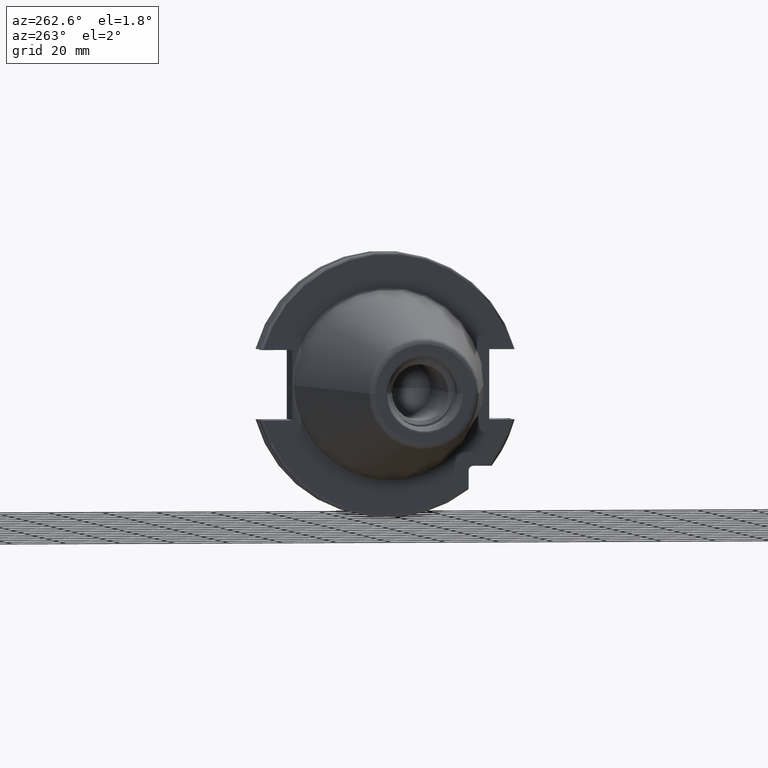
[diagram: clean part render]
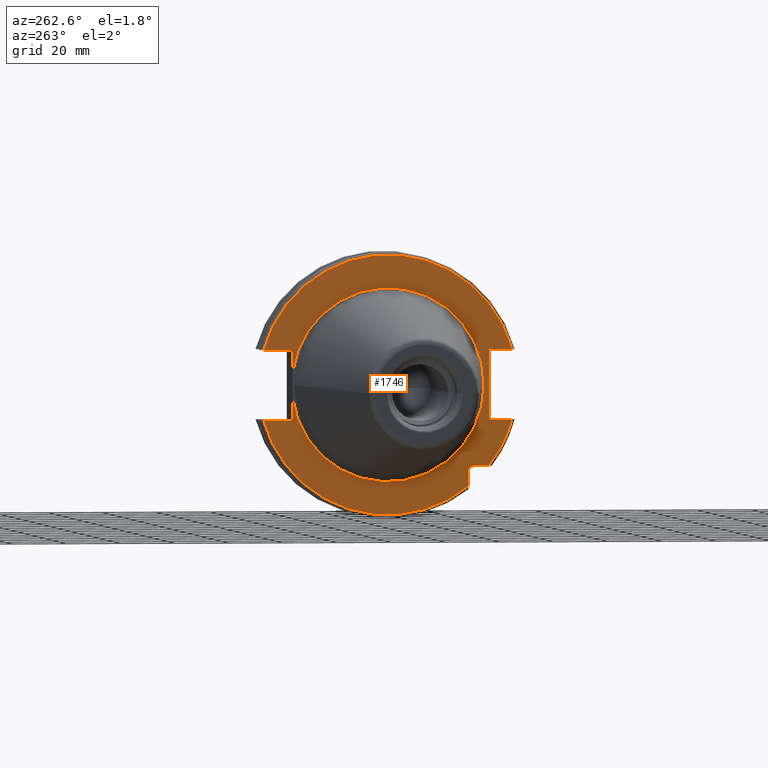
[diagram: same view with one face highlighted and labeled with its STEP entity id]
A machine part, auxiliary view. The second image highlights one B-rep face of the part: STEP entity #1746.
In plain terms, the highlighted planar face has unit normal (1, 0, 0).
Its self-contained STEP definition (entity closure, byte-faithful):
#117=CARTESIAN_POINT('',(3.2E0,0.E0,0.E0));
#118=DIRECTION('',(-1.E0,0.E0,0.E0));
#119=DIRECTION('',(0.E0,9.922698524245E-1,-1.240989120402E-1));
#120=AXIS2_PLACEMENT_3D('',#117,#118,#119);
#177=CARTESIAN_POINT('',(3.2E0,-3.16E1,-3.16E1));
#178=DIRECTION('',(1.E0,0.E0,0.E0));
#179=DIRECTION('',(0.E0,1.E0,0.E0));
#180=AXIS2_PLACEMENT_3D('',#177,#178,#179);
#182=DIRECTION('',(0.E0,-1.E0,0.E0));
#183=VECTOR('',#182,5.653810627237E0);
#184=CARTESIAN_POINT('',(3.2E0,-3.16E1,-2.985E1));
#185=LINE('',#184,#183);
#186=DIRECTION('',(0.E0,0.E0,1.E0));
#187=VECTOR('',#186,5.653810627237E0);
#188=CARTESIAN_POINT('',(3.2E0,-2.985E1,-3.725381062724E1));
#189=LINE('',#188,#187);
#190=CARTESIAN_POINT('',(3.2E0,0.E0,0.E0));
#191=DIRECTION('',(-1.E0,0.E0,0.E0));
#192=DIRECTION('',(0.E0,9.627964123359E-1,-2.702278083268E-1));
#193=AXIS2_PLACEMENT_3D('',#190,#191,#192);
#195=DIRECTION('',(0.E0,-1.E0,0.E0));
#196=VECTOR('',#195,1.066149373389E1);
#197=CARTESIAN_POINT('',(3.2E0,4.596149373389E1,-1.29E1));
#198=LINE('',#197,#196);
#199=DIRECTION('',(0.E0,0.E0,-1.E0));
#200=VECTOR('',#199,8.485181204172E0);
#201=CARTESIAN_POINT('',(3.2E0,3.53E1,-4.414818795828E0));
#202=LINE('',#201,#200);
#203=DIRECTION('',(0.E0,0.E0,-1.E0));
#204=VECTOR('',#203,8.485181204172E0);
#205=CARTESIAN_POINT('',(3.2E0,3.53E1,1.29E1));
#206=LINE('',#205,#204);
#207=DIRECTION('',(0.E0,-1.E0,0.E0));
#208=VECTOR('',#207,1.066149373389E1);
#209=CARTESIAN_POINT('',(3.2E0,4.596149373389E1,1.29E1));
#210=LINE('',#209,#208);
#211=CARTESIAN_POINT('',(3.2E0,0.E0,0.E0));
#212=DIRECTION('',(1.E0,0.E0,0.E0));
#213=DIRECTION('',(0.E0,9.627964123359E-1,2.702278083268E-1));
#214=AXIS2_PLACEMENT_3D('',#211,#212,#213);
#216=DIRECTION('',(0.E0,1.E0,0.E0));
#217=VECTOR('',#216,8.461493733886E0);
#218=CARTESIAN_POINT('',(3.2E0,-4.596149373389E1,1.29E1));
#219=LINE('',#218,#217);
#220=DIRECTION('',(0.E0,0.E0,1.E0));
#221=VECTOR('',#220,2.58E1);
#222=CARTESIAN_POINT('',(3.2E0,-3.75E1,-1.29E1));
#223=LINE('',#222,#221);
#224=DIRECTION('',(0.E0,1.E0,0.E0));
#225=VECTOR('',#224,8.461493733886E0);
#226=CARTESIAN_POINT('',(3.2E0,-4.596149373389E1,-1.29E1));
#227=LINE('',#226,#225);
#228=CARTESIAN_POINT('',(3.2E0,0.E0,0.E0));
#229=DIRECTION('',(-1.E0,0.E0,0.E0));
#230=DIRECTION('',(0.E0,-7.803888060170E-1,-6.252945797329E-1));
#231=AXIS2_PLACEMENT_3D('',#228,#229,#230);
#279=CARTESIAN_POINT('',(3.2E0,-3.725381062724E1,-2.985E1));
#891=CARTESIAN_POINT('',(3.2E0,0.E0,0.E0));
#892=DIRECTION('',(1.E0,0.E0,0.E0));
#893=DIRECTION('',(0.E0,9.922698524245E-1,1.240989120402E-1));
#894=AXIS2_PLACEMENT_3D('',#891,#892,#893);
#1218=CARTESIAN_POINT('',(3.2E0,-3.5575E1,0.E0));
#1220=VERTEX_POINT('',#1218);
#1352=CARTESIAN_POINT('',(3.2E0,4.596149373389E1,1.29E1));
#1353=CARTESIAN_POINT('',(3.2E0,3.53E1,1.29E1));
#1354=VERTEX_POINT('',#1352);
#1355=VERTEX_POINT('',#1353);
#1356=CARTESIAN_POINT('',(3.2E0,3.53E1,4.414818795828E0));
#1357=VERTEX_POINT('',#1356);
#1358=CARTESIAN_POINT('',(3.2E0,3.53E1,-4.414818795828E0));
#1359=CARTESIAN_POINT('',(3.2E0,3.53E1,-1.29E1));
#1360=VERTEX_POINT('',#1358);
#1361=VERTEX_POINT('',#1359);
#1362=CARTESIAN_POINT('',(3.2E0,4.596149373389E1,-1.29E1));
#1363=VERTEX_POINT('',#1362);
#1364=CARTESIAN_POINT('',(3.2E0,-4.596149373389E1,-1.29E1));
#1365=CARTESIAN_POINT('',(3.2E0,-3.75E1,-1.29E1));
#1366=VERTEX_POINT('',#1364);
#1367=VERTEX_POINT('',#1365);
#1368=CARTESIAN_POINT('',(3.2E0,-3.75E1,1.29E1));
#1369=VERTEX_POINT('',#1368);
#1370=CARTESIAN_POINT('',(3.2E0,-4.596149373389E1,1.29E1));
#1371=VERTEX_POINT('',#1370);
#1403=CARTESIAN_POINT('',(3.2E0,-2.985E1,-3.725381062724E1));
#1404=VERTEX_POINT('',#1403);
#1409=CARTESIAN_POINT('',(3.2E0,-2.985E1,-3.16E1));
#1410=CARTESIAN_POINT('',(3.2E0,-3.16E1,-2.985E1));
#1411=VERTEX_POINT('',#1409);
#1412=VERTEX_POINT('',#1410);
#1431=VERTEX_POINT('',#279);
#1714=CARTESIAN_POINT('',(3.2E0,0.E0,0.E0));
#1715=DIRECTION('',(1.E0,0.E0,0.E0));
#1716=DIRECTION('',(0.E0,-1.E0,0.E0));
#1717=AXIS2_PLACEMENT_3D('',#1714,#1715,#1716);
#1718=PLANE('',#1717);
#1720=ORIENTED_EDGE('',*,*,#1719,.F.);
#1721=ORIENTED_EDGE('',*,*,#1707,.F.);
#1722=ORIENTED_EDGE('',*,*,#1695,.F.);
#1724=ORIENTED_EDGE('',*,*,#1723,.F.);
#1726=ORIENTED_EDGE('',*,*,#1725,.T.);
#1727=ORIENTED_EDGE('',*,*,#1621,.F.);
#1728=ORIENTED_EDGE('',*,*,#1602,.T.);
#1730=ORIENTED_EDGE('',*,*,#1729,.F.);
#1731=ORIENTED_EDGE('',*,*,#1616,.F.);
#1733=ORIENTED_EDGE('',*,*,#1732,.F.);
#1735=ORIENTED_EDGE('',*,*,#1734,.T.);
#1737=ORIENTED_EDGE('',*,*,#1736,.T.);
#1739=ORIENTED_EDGE('',*,*,#1738,.F.);
#1741=ORIENTED_EDGE('',*,*,#1740,.F.);
#1743=ORIENTED_EDGE('',*,*,#1742,.F.);
#1744=EDGE_LOOP('',(#1720,#1721,#1722,#1724,#1726,#1727,#1728,#1730,#1731,#1733,
#1735,#1737,#1739,#1741,#1743));
#1745=FACE_OUTER_BOUND('',#1744,.F.);
#1746=ADVANCED_FACE('',(#1745),#1718,.F.);
#121=CIRCLE('',#120,3.5575E1);
#181=CIRCLE('',#180,1.75E0);
#194=CIRCLE('',#193,4.77375E1);
#215=CIRCLE('',#214,4.77375E1);
#232=CIRCLE('',#231,4.77375E1);
#895=CIRCLE('',#894,3.5575E1);
#1602=EDGE_CURVE('',#1360,#1220,#121,.T.);
#1616=EDGE_CURVE('',#1355,#1357,#206,.T.);
#1621=EDGE_CURVE('',#1360,#1361,#202,.T.);
#1695=EDGE_CURVE('',#1404,#1411,#189,.T.);
#1707=EDGE_CURVE('',#1411,#1412,#181,.T.);
#1719=EDGE_CURVE('',#1412,#1431,#185,.T.);
#1723=EDGE_CURVE('',#1363,#1404,#194,.T.);
#1725=EDGE_CURVE('',#1363,#1361,#198,.T.);
#1729=EDGE_CURVE('',#1357,#1220,#895,.T.);
#1732=EDGE_CURVE('',#1354,#1355,#210,.T.);
#1734=EDGE_CURVE('',#1354,#1371,#215,.T.);
#1736=EDGE_CURVE('',#1371,#1369,#219,.T.);
#1738=EDGE_CURVE('',#1367,#1369,#223,.T.);
#1740=EDGE_CURVE('',#1366,#1367,#227,.T.);
#1742=EDGE_CURVE('',#1431,#1366,#232,.T.);